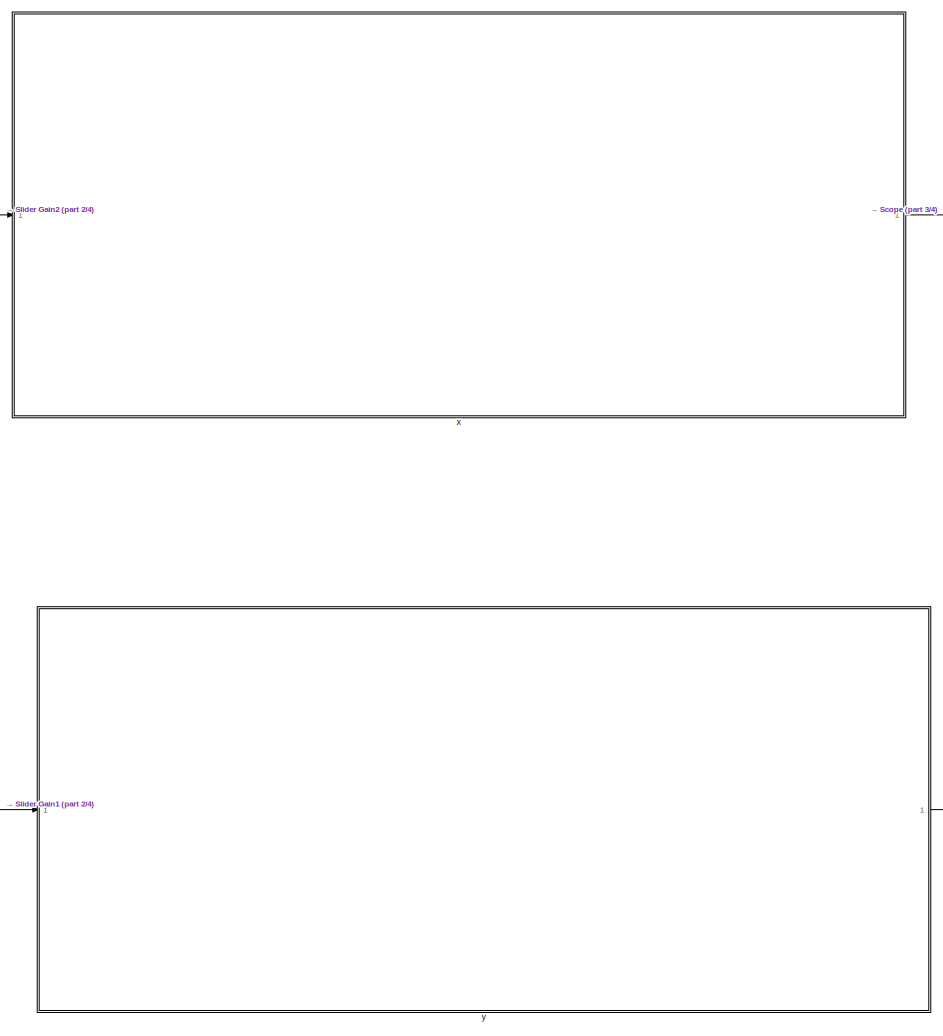
[diagram: root canvas - part 1/4, top center region]
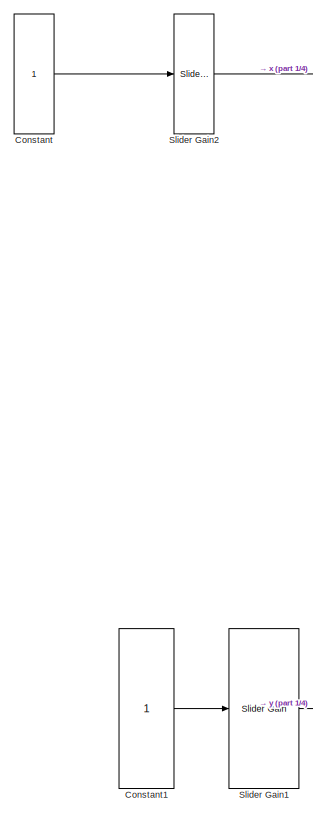
[diagram: root canvas - part 2/4, top left region]
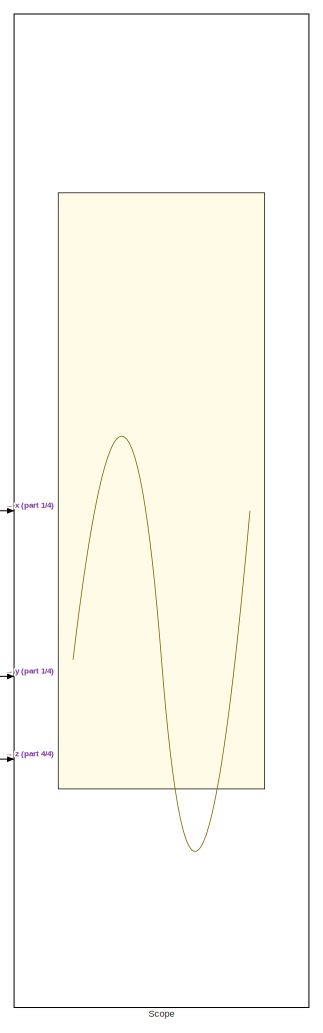
[diagram: root canvas - part 3/4, middle right region]
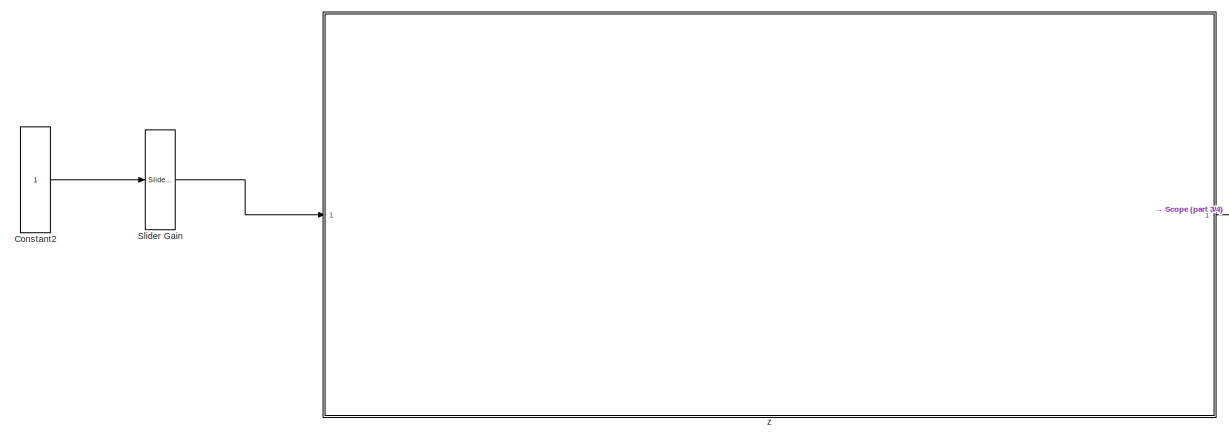
[diagram: root canvas - part 4/4, bottom center region]
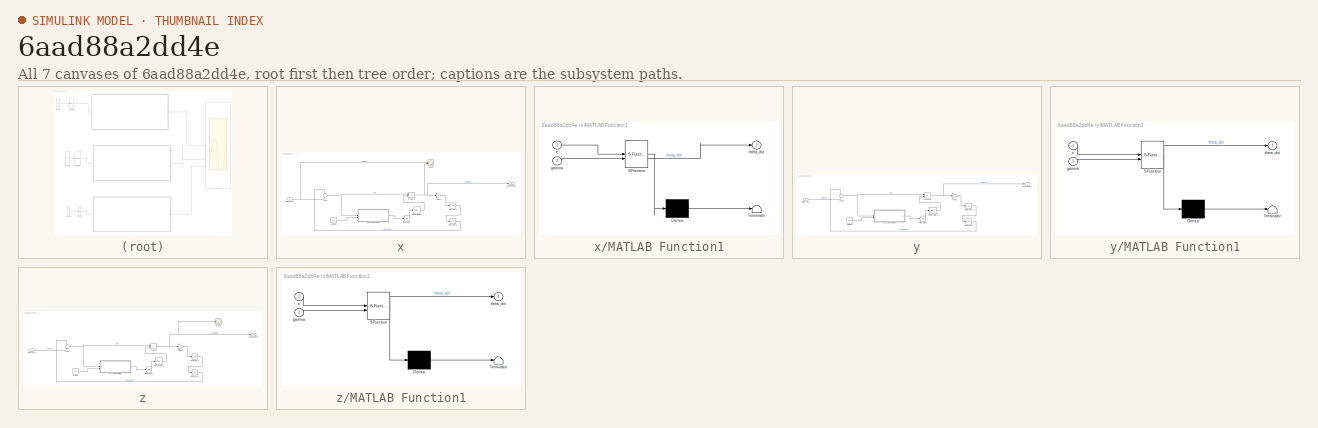
[diagram: thumbnail index - all 7 canvases of the model, root first then tree order]
MODEL slx_6aad88a2dd4e
KIND model
CONFIG AbsTol = auto
CONFIG EnableMultiTasking = off
CONFIG FixedStep = auto
CONFIG MaxStep = auto
CONFIG MinStep = auto
CONFIG RelTol = 1e-3
CONFIG SampleTimeConstraint = Unconstrained
CONFIG SolverName = VariableStepAuto
CONFIG StartTime = 0.0
CONFIG StopTime = 10
BLOCK [Constant] Constant
BLOCK [Constant] Constant1
BLOCK [Constant] Constant2
BLOCK [Scope] Scope
  Floating = off
  NumInputPorts = 3
  ScopeSpecificationString = Simulink.scopes.TimeScopeBlockCfg('CurrentConfiguration', extmgr.ConfigurationSet(extmgr.Configuration('Core','General UI',true),extmgr.Configuration('Core','Source UI',true),extmgr.Configuration('Sources','WiredSimulink',true,'DataLoggingVariableName','ScopeData1'),extmgr.Configuration('Visuals','Time Domain',true,'SerializedDisplays',{struct('MinYLimReal','-9360.57555','MaxYLimReal','8466.88042'...<+1587ch>
BLOCK [Reference] Slider Gain  REF=simulink/Math
Operations/Slider
Gain
  SourceBlock = simulink/Math\nOperations/Slider\nGain
  SourceType = Slider Gain
BLOCK [Reference] Slider Gain1  REF=simulink/Math
Operations/Slider
Gain
  SourceBlock = simulink/Math\nOperations/Slider\nGain
  SourceType = Slider Gain
BLOCK [Reference] Slider Gain2  REF=simulink/Math
Operations/Slider
Gain
  SourceBlock = simulink/Math\nOperations/Slider\nGain
  SourceType = Slider Gain
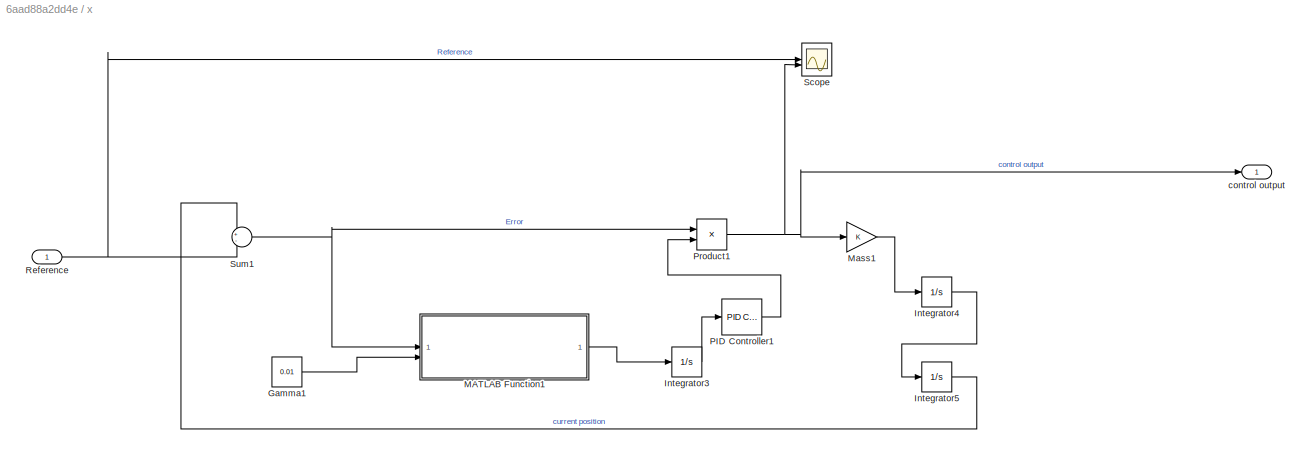
BLOCK [SubSystem] x
BLOCK [Constant] x/Gamma1
  Value = 0.01
BLOCK [Integrator] x/Integrator3
  InitialCondition = 1
BLOCK [Integrator] x/Integrator4
BLOCK [Integrator] x/Integrator5
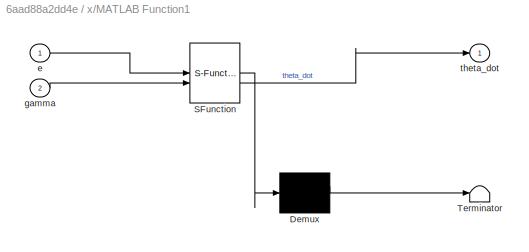
BLOCK [SubSystem] x/MATLAB Function1
  ErrorFcn = Stateflow.Translate.translate
  PermitHierarchicalResolution = ExplicitOnly
  SFBlockType = MATLAB Function
  TreatAsAtomicUnit = on
BLOCK [Demux] x/MATLAB Function1/ Demux 
  Outputs = 1
BLOCK [S-Function] x/MATLAB Function1/ SFunction 
  EnableBusSupport = on
  FunctionName = sf_sfun
  PortCounts = [2 2]
  SFcnIsStateOwnerBlock = off
  SFunctionDeploymentMode = off
  Tag = Stateflow S-Function 1
BLOCK [Terminator] x/MATLAB Function1/ Terminator 
BLOCK [Inport] x/MATLAB Function1/e
BLOCK [Inport] x/MATLAB Function1/gamma
  Port = 2
BLOCK [Outport] x/MATLAB Function1/theta_dot
BLOCK [Gain] x/Mass1
BLOCK [Reference] x/PID Controller1  REF=slpidlib/PID Controller
  LibrarySourceBlock = simulink/Continuous/PID Controller
  SourceBlock = slpidlib/PID Controller
  SourceType = PID 1dof
BLOCK [Product] x/Product1
BLOCK [Inport] x/Reference 
BLOCK [Scope] x/Scope
  Floating = off
  NumInputPorts = 2
  ScopeSpecificationString = Simulink.scopes.TimeScopeBlockCfg('CurrentConfiguration', extmgr.ConfigurationSet(extmgr.Configuration('Core','General UI',true),extmgr.Configuration('Core','Source UI',true),extmgr.Configuration('Sources','WiredSimulink',true,'DataLoggingVariableName','ScopeData1'),extmgr.Configuration('Visuals','Time Domain',true,'SerializedDisplays',{struct('MinYLimReal','-9303.43333','MaxYLimReal','7952.60041'...<+1538ch>
BLOCK [Sum] x/Sum1
  Inputs = +-
BLOCK [Outport] x/control output
BLOCK [SubSystem] y
BLOCK [Constant] y/Gamma1
  Value = 0.01
BLOCK [Integrator] y/Integrator3
  InitialCondition = 1
BLOCK [Integrator] y/Integrator4
BLOCK [Integrator] y/Integrator5
BLOCK [SubSystem] y/MATLAB Function1
  ErrorFcn = Stateflow.Translate.translate
  PermitHierarchicalResolution = ExplicitOnly
  SFBlockType = MATLAB Function
  TreatAsAtomicUnit = on
BLOCK [Demux] y/MATLAB Function1/ Demux 
  Outputs = 1
BLOCK [S-Function] y/MATLAB Function1/ SFunction 
  EnableBusSupport = on
  FunctionName = sf_sfun
  PortCounts = [2 2]
  SFcnIsStateOwnerBlock = off
  SFunctionDeploymentMode = off
  Tag = Stateflow S-Function 2
BLOCK [Terminator] y/MATLAB Function1/ Terminator 
BLOCK [Inport] y/MATLAB Function1/e
BLOCK [Inport] y/MATLAB Function1/gamma
  Port = 2
BLOCK [Outport] y/MATLAB Function1/theta_dot
BLOCK [Gain] y/Mass1
BLOCK [Reference] y/PID Controller1  REF=slpidlib/PID Controller
  SourceBlock = slpidlib/PID Controller
  SourceType = PID 1dof
BLOCK [Product] y/Product1
BLOCK [Inport] y/Reference 
BLOCK [Sum] y/Sum1
  Inputs = +-
BLOCK [Outport] y/control output
BLOCK [SubSystem] z
BLOCK [Constant] z/Gamma1
  Value = 0.01
BLOCK [Integrator] z/Integrator3
  InitialCondition = 1
BLOCK [Integrator] z/Integrator4
BLOCK [Integrator] z/Integrator5
BLOCK [SubSystem] z/MATLAB Function1
  ErrorFcn = Stateflow.Translate.translate
  PermitHierarchicalResolution = ExplicitOnly
  SFBlockType = MATLAB Function
  TreatAsAtomicUnit = on
BLOCK [Demux] z/MATLAB Function1/ Demux 
  Outputs = 1
BLOCK [S-Function] z/MATLAB Function1/ SFunction 
  EnableBusSupport = on
  FunctionName = sf_sfun
  PortCounts = [2 2]
  SFcnIsStateOwnerBlock = off
  SFunctionDeploymentMode = off
  Tag = Stateflow S-Function 3
BLOCK [Terminator] z/MATLAB Function1/ Terminator 
BLOCK [Inport] z/MATLAB Function1/e
BLOCK [Inport] z/MATLAB Function1/gamma
  Port = 2
BLOCK [Outport] z/MATLAB Function1/theta_dot
BLOCK [Gain] z/Mass1
BLOCK [Reference] z/PID Controller1  REF=slpidlib/PID Controller
  SourceBlock = slpidlib/PID Controller
  SourceType = PID 1dof
BLOCK [Product] z/Product1
BLOCK [Inport] z/Reference 
BLOCK [Scope] z/Scope
  Floating = off
  NumInputPorts = 1
  ScopeSpecificationString = Simulink.scopes.TimeScopeBlockCfg('CurrentConfiguration', extmgr.ConfigurationSet(extmgr.Configuration('Core','General UI',true),extmgr.Configuration('Core','Source UI',true),extmgr.Configuration('Sources','WiredSimulink',true,'DataLoggingVariableName','ScopeData1'),extmgr.Configuration('Visuals','Time Domain',true,'SerializedDisplays',{struct('MinYLimReal','-0.19323','MaxYLimReal','0.12272','YLab...<+1504ch>
BLOCK [Sum] z/Sum1
  Inputs = +-
BLOCK [Outport] z/control output
LINE Constant1:1 -> Slider Gain1:1
LINE Constant2:1 -> Slider Gain:1
LINE Constant:1 -> Slider Gain2:1
LINE Slider Gain1:1 -> y:1
LINE Slider Gain2:1 -> x:1
LINE Slider Gain:1 -> z:1
LINE x/Gamma1:1 -> x/MATLAB Function1:2
LINE x/Integrator3:1 -> x/PID Controller1:1
LINE x/Integrator4:1 -> x/Integrator5:1
LINE x/Integrator5:1 -> x/Sum1:1
LINE x/MATLAB Function1:1 -> x/Integrator3:1
LINE x/Mass1:1 -> x/Integrator4:1
LINE x/PID Controller1:1 -> x/Product1:2
NET x/Product1:1 -> x/Mass1:1, x/Scope:2, x/control output:1
NET x/Reference :1 -> x/Scope:1, x/Sum1:2
NET x/Sum1:1 -> x/MATLAB Function1:1, x/Product1:1
LINE x:1 -> Scope:1
LINE y/Gamma1:1 -> y/MATLAB Function1:2
LINE y/Integrator3:1 -> y/PID Controller1:1
LINE y/Integrator4:1 -> y/Integrator5:1
LINE y/Integrator5:1 -> y/Sum1:1
LINE y/MATLAB Function1:1 -> y/Integrator3:1
LINE y/Mass1:1 -> y/Integrator4:1
LINE y/PID Controller1:1 -> y/Product1:2
NET y/Product1:1 -> y/Mass1:1, y/control output:1
LINE y/Reference :1 -> y/Sum1:2
NET y/Sum1:1 -> y/MATLAB Function1:1, y/Product1:1
LINE y:1 -> Scope:2
LINE z/Gamma1:1 -> z/MATLAB Function1:2
LINE z/Integrator3:1 -> z/PID Controller1:1
LINE z/Integrator4:1 -> z/Integrator5:1
LINE z/Integrator5:1 -> z/Sum1:1
LINE z/MATLAB Function1:1 -> z/Integrator3:1
LINE z/Mass1:1 -> z/Integrator4:1
LINE z/PID Controller1:1 -> z/Product1:2
NET z/Product1:1 -> z/Mass1:1, z/Scope:1, z/control output:1
LINE z/Reference :1 -> z/Sum1:2
NET z/Sum1:1 -> z/MATLAB Function1:1, z/Product1:1
LINE z:1 -> Scope:3
note: NET lines group one-source signal fan-out (src -> all destinations, sorted); 1:1 wires keep LINE
CHART y/MATLAB Function1 states=1 transitions=1
  STATE_LABEL 'eML_blk_kernel()'
  STATE_LABEL 'SCRIPT:\nfunction theta_dot = Adapt(e, gamma)\n\n    sigma = 0.01;  \n    theta = 1;\n    % damping term\n    theta_dot = gamma * e - sigma * theta;\nend\n'
CHART z/MATLAB Function1 states=1 transitions=1
  STATE_LABEL 'eML_blk_kernel()'
  STATE_LABEL 'SCRIPT:\nfunction theta_dot = Adapt(e, gamma)\n    sigma = 0.01;  \n    theta = 1;\n    % damping term\n    theta_dot = gamma * e - sigma * theta;\nend\n'
CHART x/MATLAB Function1 states=1 transitions=1
  STATE_LABEL 'eML_blk_kernel()'
  STATE_LABEL 'SCRIPT:\nfunction theta_dot = Adapt(e, gamma)\n    sigma = 0.01;  \n    theta = 1;\n    % damping term\n    theta_dot = gamma * e - sigma * theta;\nend\n'
CHART  states=0 transitions=0
CHART  states=0 transitions=0
CHART  states=0 transitions=0
